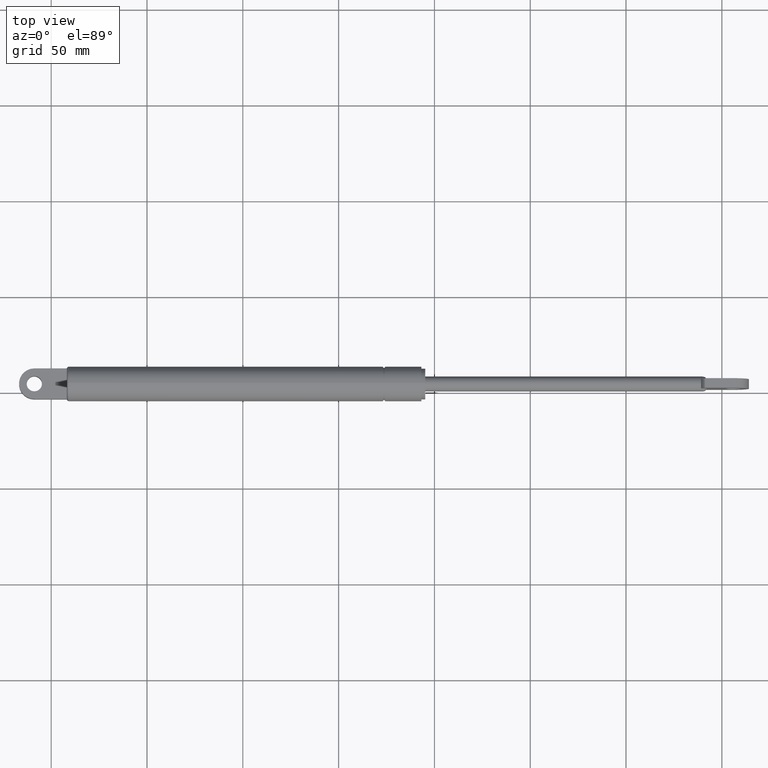
[diagram: clean part render]
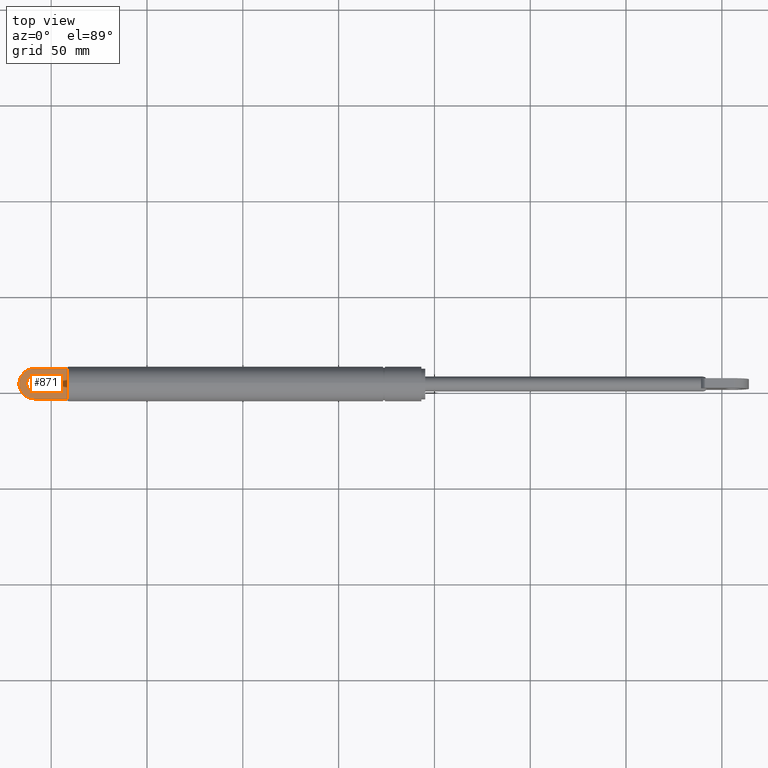
[diagram: same view with one face highlighted and labeled with its STEP entity id]
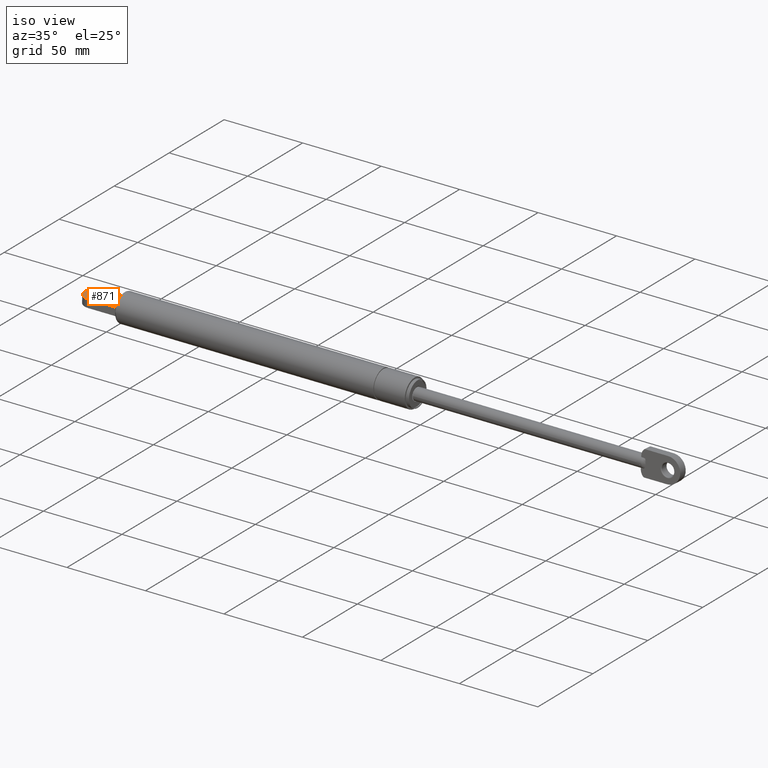
[diagram: same view with one face highlighted and labeled with its STEP entity id]
A machine part, top view. The second image highlights one B-rep face of the part: STEP entity #871.
A second angle (iso view) of the same face is appended — the face is thin or edge-on in the first view.
In plain terms, the highlighted planar face has unit normal (-0, 0.0527, 0.9986).
Its self-contained STEP definition (entity closure, byte-faithful):
#76=LINE('',#1368,#112);
#80=LINE('',#1405,#116);
#83=LINE('',#1412,#119);
#112=VECTOR('',#1049,15.1986841535706);
#116=VECTOR('',#1095,17.0756424317819);
#119=VECTOR('',#1104,17.0756424316873);
#156=PLANE('',#948);
#185=FACE_BOUND('',#313,.T.);
#211=B_SPLINE_CURVE_WITH_KNOTS('',3,(#1317,#1318,#1319,#1320),
 .UNSPECIFIED.,.F.,.F.,(4,4),(0.456714372594829,0.495344731314977),
 .UNSPECIFIED.);
#212=B_SPLINE_CURVE_WITH_KNOTS('',3,(#1324,#1325,#1326,#1327),
 .UNSPECIFIED.,.F.,.F.,(4,4),(0.112988647950205,0.151619006673783),
 .UNSPECIFIED.);
#244=FACE_OUTER_BOUND('',#312,.T.);
#312=EDGE_LOOP('',(#682,#683,#684,#685,#686,#687));
#313=EDGE_LOOP('',(#688));
#393=CIRCLE('',#941,3.99999999999999);
#395=CIRCLE('',#946,8.00000000000004);
#438=VERTEX_POINT('',#1315);
#439=VERTEX_POINT('',#1316);
#440=VERTEX_POINT('',#1321);
#441=VERTEX_POINT('',#1323);
#456=VERTEX_POINT('',#1395);
#459=VERTEX_POINT('',#1404);
#460=VERTEX_POINT('',#1408);
#523=EDGE_CURVE('',#438,#439,#211,.T.);
#525=EDGE_CURVE('',#441,#440,#212,.T.);
#533=EDGE_CURVE('',#438,#440,#76,.T.);
#543=EDGE_CURVE('',#456,#456,#393,.T.);
#547=EDGE_CURVE('',#459,#441,#80,.T.);
#549=EDGE_CURVE('',#460,#459,#395,.T.);
#551=EDGE_CURVE('',#439,#460,#83,.F.);
#682=ORIENTED_EDGE('',*,*,#551,.T.);
#683=ORIENTED_EDGE('',*,*,#549,.T.);
#684=ORIENTED_EDGE('',*,*,#547,.T.);
#685=ORIENTED_EDGE('',*,*,#525,.T.);
#686=ORIENTED_EDGE('',*,*,#533,.F.);
#687=ORIENTED_EDGE('',*,*,#523,.T.);
#688=ORIENTED_EDGE('',*,*,#543,.T.);
#871=ADVANCED_FACE('',(#244,#185),#156,.T.);
#941=AXIS2_PLACEMENT_3D('',#1396,#1085,#1086);
#946=AXIS2_PLACEMENT_3D('',#1409,#1099,#1100);
#948=AXIS2_PLACEMENT_3D('',#1413,#1105,#1106);
#1049=DIRECTION('',(0.,0.,-1.));
#1085=DIRECTION('center_axis',(0.,-1.,0.));
#1086=DIRECTION('ref_axis',(1.,0.,0.));
#1095=DIRECTION('',(-1.,0.,3.26536183713282E-16));
#1099=DIRECTION('center_axis',(0.,1.,0.));
#1100=DIRECTION('ref_axis',(0.,0.,1.));
#1104=DIRECTION('',(-1.,0.,6.53072367426564E-17));
#1105=DIRECTION('center_axis',(0.,1.,0.));
#1106=DIRECTION('ref_axis',(0.,0.,1.));
#1315=CARTESIAN_POINT('',(186.997326184093,2.5,7.59934207678529));
#1316=CARTESIAN_POINT('',(186.921683752405,2.49999999961504,8.));
#1317=CARTESIAN_POINT('Ctrl Pts',(186.997326184093,2.5,7.59934207678529));
#1318=CARTESIAN_POINT('Ctrl Pts',(186.997326184093,2.5,7.72810993918578));
#1319=CARTESIAN_POINT('Ctrl Pts',(186.9690588353,2.5,7.87974655266986));
#1320=CARTESIAN_POINT('Ctrl Pts',(186.921683752323,2.5,7.99999999996775));
#1321=CARTESIAN_POINT('',(186.997326184093,2.5,-7.59934207678529));
#1323=CARTESIAN_POINT('',(186.921683752311,2.5,-7.99999999999981));
#1324=CARTESIAN_POINT('Ctrl Pts',(186.921683752311,2.5,-7.99999999999978));
#1325=CARTESIAN_POINT('Ctrl Pts',(186.969058835294,2.5,-7.87974655269638));
#1326=CARTESIAN_POINT('Ctrl Pts',(186.997326184093,2.5,-7.72810993919722));
#1327=CARTESIAN_POINT('Ctrl Pts',(186.997326184093,2.5,-7.59934207678529));
#1368=CARTESIAN_POINT('',(186.997326184093,2.5,-9.9775588570196E-16));
#1395=CARTESIAN_POINT('',(199.997326184093,2.5,-2.9851774108224E-15));
#1396=CARTESIAN_POINT('Origin',(203.997326184093,2.5,-3.47503613048134E-15));
#1404=CARTESIAN_POINT('',(203.997326184093,2.5,-8.00000000000001));
#1405=CARTESIAN_POINT('',(203.997326184093,2.5,-8.00000000000001));
#1408=CARTESIAN_POINT('',(203.997326184093,2.5,8.));
#1409=CARTESIAN_POINT('Origin',(203.997326184093,2.5,-2.77066254517014E-15));
#1412=CARTESIAN_POINT('',(192.12039844524,2.5,8.));
#1413=CARTESIAN_POINT('Origin',(197.243470706387,2.5,-1.99551177140392E-15));